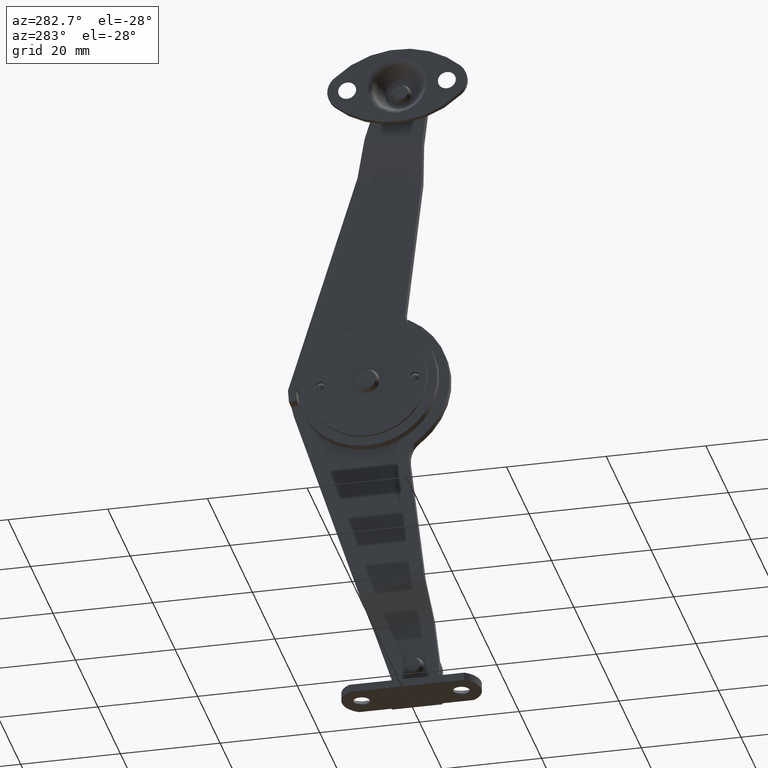
[diagram: clean part render]
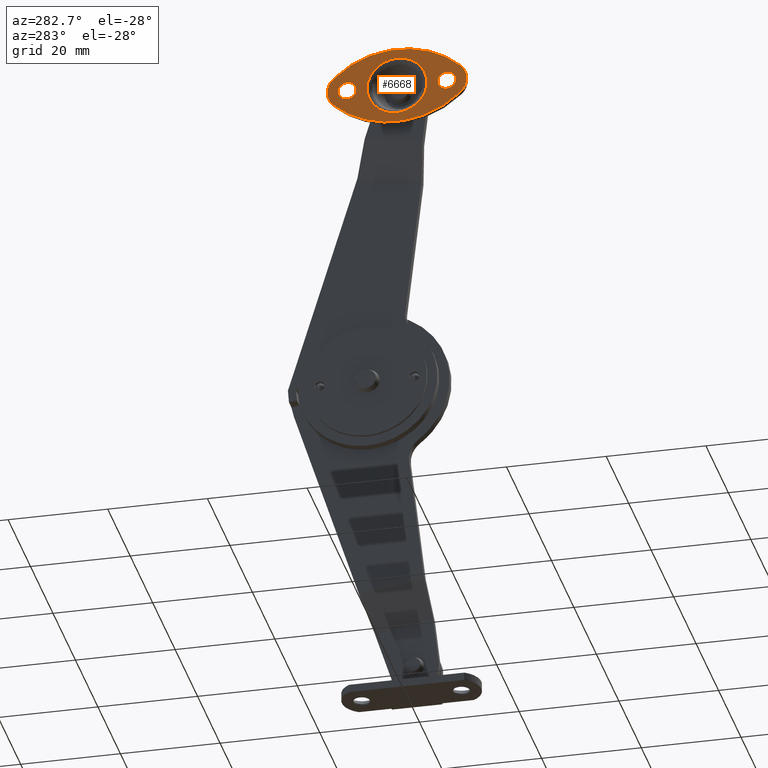
[diagram: same view with one face highlighted and labeled with its STEP entity id]
A machine part, auxiliary view. The second image highlights one B-rep face of the part: STEP entity #6668.
In plain terms, the highlighted face is a freeform B-spline surface patch.
Its self-contained STEP definition (entity closure, byte-faithful):
#4933=CARTESIAN_POINT('',(4.731361E-010,8.205548799091805,60.358773624055331));
#4934=VERTEX_POINT('',#4933);
#4940=CARTESIAN_POINT('',(-1.122190E-014,10.0,62.299999999999997));
#4941=VERTEX_POINT('',#4940);
#4942=CARTESIAN_POINT('',(4.731361E-010,8.205548799091805,60.358773624055331));
#4943=CARTESIAN_POINT('',(-1.122190E-014,8.200000000000001,60.429277803772081));
#4944=CARTESIAN_POINT('',(-1.122190E-014,8.200000000000001,60.500000000000000));
#4945=CARTESIAN_POINT('',(-1.122190E-014,8.200000000000001,62.300000000000011));
#4946=CARTESIAN_POINT('',(-1.122190E-014,10.0,62.299999999999997));
#4954=(BOUNDED_CURVE()B_SPLINE_CURVE(2,(#4942,#4943,#4944,#4945,#4946),.UNSPECIFIED.,.F.,.U.)B_SPLINE_CURVE_WITH_KNOTS((3,2,3),(0.736331299945442,0.750000000000000,1.0),.UNSPECIFIED.)CURVE()GEOMETRIC_REPRESENTATION_ITEM()RATIONAL_B_SPLINE_CURVE((0.969723354737421,0.983986121776100,1.0,0.707106781186547,1.0))REPRESENTATION_ITEM(''));
#4955=EDGE_CURVE('',#4934,#4941,#4954,.T.);
#4957=CARTESIAN_POINT('',(4.731358E-010,11.794451200908190,60.641226375944662));
#4958=VERTEX_POINT('',#4957);
#4959=CARTESIAN_POINT('',(-1.122190E-014,10.0,62.299999999999997));
#4960=CARTESIAN_POINT('',(-1.122190E-014,11.663902878292749,62.300000000000004));
#4961=CARTESIAN_POINT('',(4.731358E-010,11.794451200908194,60.641226375944655));
#4969=(BOUNDED_CURVE()B_SPLINE_CURVE(2,(#4959,#4960,#4961),.UNSPECIFIED.,.F.,.U.)B_SPLINE_CURVE_WITH_KNOTS((3,3),(0.0,0.236331299945443),.UNSPECIFIED.)CURVE()GEOMETRIC_REPRESENTATION_ITEM()RATIONAL_B_SPLINE_CURVE((1.0,0.723120659410447,0.969723354737423))REPRESENTATION_ITEM(''));
#4970=EDGE_CURVE('',#4941,#4958,#4969,.T.);
#5016=CARTESIAN_POINT('',(-1.122190E-014,10.0,58.700000000000003));
#5017=VERTEX_POINT('',#5016);
#5018=CARTESIAN_POINT('',(4.731358E-010,11.794451200908197,60.641226375944655));
#5019=CARTESIAN_POINT('',(-1.122190E-014,11.800000000000002,60.570722196227919));
#5020=CARTESIAN_POINT('',(-1.122190E-014,11.800000000000001,60.500000000000000));
#5021=CARTESIAN_POINT('',(-1.122190E-014,11.799999999999997,58.700000000000003));
#5022=CARTESIAN_POINT('',(-1.122190E-014,10.0,58.700000000000003));
#5030=(BOUNDED_CURVE()B_SPLINE_CURVE(2,(#5018,#5019,#5020,#5021,#5022),.UNSPECIFIED.,.F.,.U.)B_SPLINE_CURVE_WITH_KNOTS((3,2,3),(0.236331299945443,0.250000000000000,0.500000000000000),.UNSPECIFIED.)CURVE()GEOMETRIC_REPRESENTATION_ITEM()RATIONAL_B_SPLINE_CURVE((0.969723354737423,0.983986121776101,1.0,0.707106781186547,1.0))REPRESENTATION_ITEM(''));
#5031=EDGE_CURVE('',#4958,#5017,#5030,.T.);
#5033=CARTESIAN_POINT('',(-1.122190E-014,10.0,58.700000000000003));
#5034=CARTESIAN_POINT('',(-1.122190E-014,8.336097121707255,58.700000000000003));
#5035=CARTESIAN_POINT('',(4.731361E-010,8.205548799091805,60.358773624055331));
#5043=(BOUNDED_CURVE()B_SPLINE_CURVE(2,(#5033,#5034,#5035),.UNSPECIFIED.,.F.,.U.)B_SPLINE_CURVE_WITH_KNOTS((3,3),(0.500000000000000,0.736331299945443),.UNSPECIFIED.)CURVE()GEOMETRIC_REPRESENTATION_ITEM()RATIONAL_B_SPLINE_CURVE((1.0,0.723120659410447,0.969723354737422))REPRESENTATION_ITEM(''));
#5044=EDGE_CURVE('',#5017,#4934,#5043,.T.);
#5115=CARTESIAN_POINT('',(4.731369E-010,-11.794451200907970,60.358773624055331));
#5116=VERTEX_POINT('',#5115);
#5122=CARTESIAN_POINT('',(-1.122190E-014,-9.999999999999769,62.299999999999997));
#5123=VERTEX_POINT('',#5122);
#5124=CARTESIAN_POINT('',(4.731369E-010,-11.794451200907966,60.358773624055331));
#5125=CARTESIAN_POINT('',(-1.122190E-014,-11.799999999999768,60.429277803772081));
#5126=CARTESIAN_POINT('',(-1.122190E-014,-11.799999999999770,60.500000000000000));
#5127=CARTESIAN_POINT('',(-1.122190E-014,-11.799999999999770,62.300000000000011));
#5128=CARTESIAN_POINT('',(-1.122190E-014,-9.999999999999769,62.299999999999997));
#5136=(BOUNDED_CURVE()B_SPLINE_CURVE(2,(#5124,#5125,#5126,#5127,#5128),.UNSPECIFIED.,.F.,.U.)B_SPLINE_CURVE_WITH_KNOTS((3,2,3),(0.736331299945442,0.750000000000000,1.0),.UNSPECIFIED.)CURVE()GEOMETRIC_REPRESENTATION_ITEM()RATIONAL_B_SPLINE_CURVE((0.969723354737421,0.983986121776100,1.0,0.707106781186547,1.0))REPRESENTATION_ITEM(''));
#5137=EDGE_CURVE('',#5116,#5123,#5136,.T.);
#5139=CARTESIAN_POINT('',(4.731363E-010,-8.205548799091574,60.641226375944669));
#5140=VERTEX_POINT('',#5139);
#5141=CARTESIAN_POINT('',(-1.122190E-014,-9.999999999999769,62.299999999999997));
#5142=CARTESIAN_POINT('',(-1.122190E-014,-8.336097121707029,62.300000000000004));
#5143=CARTESIAN_POINT('',(4.731363E-010,-8.205548799091574,60.641226375944669));
#5151=(BOUNDED_CURVE()B_SPLINE_CURVE(2,(#5141,#5142,#5143),.UNSPECIFIED.,.F.,.U.)B_SPLINE_CURVE_WITH_KNOTS((3,3),(0.0,0.236331299945442),.UNSPECIFIED.)CURVE()GEOMETRIC_REPRESENTATION_ITEM()RATIONAL_B_SPLINE_CURVE((1.0,0.723120659410448,0.969723354737421))REPRESENTATION_ITEM(''));
#5152=EDGE_CURVE('',#5123,#5140,#5151,.T.);
#5198=CARTESIAN_POINT('',(-1.122190E-014,-9.999999999999769,58.700000000000003));
#5199=VERTEX_POINT('',#5198);
#5200=CARTESIAN_POINT('',(4.731363E-010,-8.205548799091574,60.641226375944669));
#5201=CARTESIAN_POINT('',(-1.122190E-014,-8.199999999999770,60.570722196227919));
#5202=CARTESIAN_POINT('',(-1.122190E-014,-8.199999999999770,60.500000000000000));
#5203=CARTESIAN_POINT('',(-1.122190E-014,-8.199999999999770,58.700000000000003));
#5204=CARTESIAN_POINT('',(-1.122190E-014,-9.999999999999769,58.700000000000003));
#5212=(BOUNDED_CURVE()B_SPLINE_CURVE(2,(#5200,#5201,#5202,#5203,#5204),.UNSPECIFIED.,.F.,.U.)B_SPLINE_CURVE_WITH_KNOTS((3,2,3),(0.236331299945442,0.250000000000000,0.500000000000000),.UNSPECIFIED.)CURVE()GEOMETRIC_REPRESENTATION_ITEM()RATIONAL_B_SPLINE_CURVE((0.969723354737421,0.983986121776100,1.0,0.707106781186547,1.0))REPRESENTATION_ITEM(''));
#5213=EDGE_CURVE('',#5140,#5199,#5212,.T.);
#5215=CARTESIAN_POINT('',(-1.122190E-014,-9.999999999999769,58.700000000000003));
#5216=CARTESIAN_POINT('',(-1.122190E-014,-11.663902878292516,58.700000000000003));
#5217=CARTESIAN_POINT('',(4.731369E-010,-11.794451200907968,60.358773624055331));
#5225=(BOUNDED_CURVE()B_SPLINE_CURVE(2,(#5215,#5216,#5217),.UNSPECIFIED.,.F.,.U.)B_SPLINE_CURVE_WITH_KNOTS((3,3),(0.500000000000000,0.736331299945443),.UNSPECIFIED.)CURVE()GEOMETRIC_REPRESENTATION_ITEM()RATIONAL_B_SPLINE_CURVE((1.0,0.723120659410447,0.969723354737422))REPRESENTATION_ITEM(''));
#5226=EDGE_CURVE('',#5199,#5116,#5225,.T.);
#5483=CARTESIAN_POINT('',(1.655306E-016,2.414731515768321,55.007361348844213));
#5484=VERTEX_POINT('',#5483);
#5498=CARTESIAN_POINT('',(0.0,0.0,54.499999362757407));
#5499=VERTEX_POINT('',#5498);
#5500=CARTESIAN_POINT('',(0.0,0.0,54.499999362757407));
#5501=CARTESIAN_POINT('',(0.0,1.260666959942640,54.499999362757407));
#5502=CARTESIAN_POINT('',(1.655306E-016,2.414731515768320,55.007361348844213));
#5510=(BOUNDED_CURVE()B_SPLINE_CURVE(2,(#5500,#5501,#5502),.UNSPECIFIED.,.F.,.U.)B_SPLINE_CURVE_WITH_KNOTS((3,3),(0.500000000000000,0.568337989563843),.UNSPECIFIED.)CURVE()GEOMETRIC_REPRESENTATION_ITEM()RATIONAL_B_SPLINE_CURVE((1.0,0.919937065077624,0.883644850244656))REPRESENTATION_ITEM(''));
#5511=EDGE_CURVE('',#5499,#5484,#5510,.T.);
#5513=CARTESIAN_POINT('',(0.0,0.0,66.500000637242593));
#5514=VERTEX_POINT('',#5513);
#5515=CARTESIAN_POINT('',(0.0,0.0,66.500000637242593));
#5516=CARTESIAN_POINT('',(0.0,-6.000000637242591,66.500000637242593));
#5517=CARTESIAN_POINT('',(0.0,-6.000000637242590,60.500000000000000));
#5518=CARTESIAN_POINT('',(0.0,-6.000000637242591,54.499999362757414));
#5519=CARTESIAN_POINT('',(0.0,0.0,54.499999362757407));
#5527=(BOUNDED_CURVE()B_SPLINE_CURVE(2,(#5515,#5516,#5517,#5518,#5519),.UNSPECIFIED.,.F.,.U.)B_SPLINE_CURVE_WITH_KNOTS((3,2,3),(0.0,0.250000000000000,0.500000000000000),.UNSPECIFIED.)CURVE()GEOMETRIC_REPRESENTATION_ITEM()RATIONAL_B_SPLINE_CURVE((1.0,0.707106781186547,1.0,0.707106781186547,1.0))REPRESENTATION_ITEM(''));
#5528=EDGE_CURVE('',#5514,#5499,#5527,.T.);
#5530=CARTESIAN_POINT('',(1.708202E-016,5.829791016672071,61.918994132872491));
#5531=VERTEX_POINT('',#5530);
#5532=CARTESIAN_POINT('',(1.708202E-016,5.829791016672071,61.918994132872491));
#5533=CARTESIAN_POINT('',(0.0,4.714755960700335,66.500000637242593));
#5534=CARTESIAN_POINT('',(0.0,0.0,66.500000637242593));
#5542=(BOUNDED_CURVE()B_SPLINE_CURVE(2,(#5532,#5533,#5534),.UNSPECIFIED.,.F.,.U.)B_SPLINE_CURVE_WITH_KNOTS((3,3),(0.790401677693715,1.0),.UNSPECIFIED.)CURVE()GEOMETRIC_REPRESENTATION_ITEM()RATIONAL_B_SPLINE_CURVE((0.920631806222915,0.754440290887250,1.0))REPRESENTATION_ITEM(''));
#5543=EDGE_CURVE('',#5531,#5514,#5542,.T.);
#5641=CARTESIAN_POINT('',(1.655306E-016,2.414731515768321,55.007361348844213));
#5642=CARTESIAN_POINT('',(0.0,6.000000637242589,56.583555030817145));
#5643=CARTESIAN_POINT('',(0.0,6.000000637242590,60.500000000000000));
#5644=CARTESIAN_POINT('',(0.0,6.000000637242591,61.219705464867644));
#5645=CARTESIAN_POINT('',(1.708202E-016,5.829791016672071,61.918994132872491));
#5653=(BOUNDED_CURVE()B_SPLINE_CURVE(2,(#5641,#5642,#5643,#5644,#5645),.UNSPECIFIED.,.F.,.U.)B_SPLINE_CURVE_WITH_KNOTS((3,2,3),(0.568337989563842,0.750000000000000,0.790401677693714),.UNSPECIFIED.)CURVE()GEOMETRIC_REPRESENTATION_ITEM()RATIONAL_B_SPLINE_CURVE((0.883644850244656,0.787169716108923,1.0,0.952666490299297,0.920631806222916))REPRESENTATION_ITEM(''));
#5654=EDGE_CURVE('',#5484,#5531,#5653,.T.);
#6423=CARTESIAN_POINT('',(0.0,12.758616721199980,57.603444496382103));
#6424=VERTEX_POINT('',#6423);
#6430=CARTESIAN_POINT('',(0.0,12.758617123849641,63.396555215380587));
#6431=VERTEX_POINT('',#6430);
#6432=CARTESIAN_POINT('',(0.0,12.758616721199980,57.603444496382103));
#6433=CARTESIAN_POINT('',(0.0,13.999998855877655,58.785710790368512));
#6434=CARTESIAN_POINT('',(0.0,13.999998975029129,60.499999351728952));
#6435=CARTESIAN_POINT('',(0.0,13.999999094180607,62.214287913089372));
#6436=CARTESIAN_POINT('',(0.0,12.758617123849641,63.396555215380587));
#6444=(BOUNDED_CURVE()B_SPLINE_CURVE(2,(#6432,#6433,#6434,#6435,#6436),.UNSPECIFIED.,.F.,.U.)B_SPLINE_CURVE_WITH_KNOTS((3,2,3),(0.0,0.500000000000000,1.0),.UNSPECIFIED.)CURVE()GEOMETRIC_REPRESENTATION_ITEM()RATIONAL_B_SPLINE_CURVE((1.0,0.919144843556742,1.0,0.919144843556742,1.0))REPRESENTATION_ITEM(''));
#6445=EDGE_CURVE('',#6424,#6431,#6444,.T.);
#6484=CARTESIAN_POINT('',(0.0,-12.758620084382461,57.603447699412207));
#6485=VERTEX_POINT('',#6484);
#6491=CARTESIAN_POINT('',(0.0,-12.758620084382461,57.603447699412207));
#6492=CARTESIAN_POINT('',(0.0,-0.000003206843158,45.452385105824156));
#6493=CARTESIAN_POINT('',(0.0,12.758616721199999,57.603444496382068));
#6501=(BOUNDED_CURVE()B_SPLINE_CURVE(2,(#6491,#6492,#6493),.UNSPECIFIED.,.F.,.U.)CURVE()GEOMETRIC_REPRESENTATION_ITEM()QUASI_UNIFORM_CURVE()RATIONAL_B_SPLINE_CURVE((1.0,0.724138048762327,1.0))REPRESENTATION_ITEM(''));
#6502=EDGE_CURVE('',#6485,#6424,#6501,.T.);
#6539=CARTESIAN_POINT('',(0.0,-12.758619224957959,63.396553119086697));
#6540=VERTEX_POINT('',#6539);
#6546=CARTESIAN_POINT('',(0.0,-12.758619224957970,63.396553119086718));
#6547=CARTESIAN_POINT('',(0.0,-13.999999745680187,62.214287153588835));
#6548=CARTESIAN_POINT('',(0.0,-13.999999999999730,60.500000593411940));
#6549=CARTESIAN_POINT('',(0.0,-14.000000254319261,58.785714033235045));
#6550=CARTESIAN_POINT('',(0.0,-12.758620084382461,57.603447699412207));
#6558=(BOUNDED_CURVE()B_SPLINE_CURVE(2,(#6546,#6547,#6548,#6549,#6550),.UNSPECIFIED.,.F.,.U.)B_SPLINE_CURVE_WITH_KNOTS((3,2,3),(0.0,0.500000000000000,1.0),.UNSPECIFIED.)CURVE()GEOMETRIC_REPRESENTATION_ITEM()RATIONAL_B_SPLINE_CURVE((1.0,0.919144959641192,1.0,0.919144959641192,1.0))REPRESENTATION_ITEM(''));
#6559=EDGE_CURVE('',#6540,#6485,#6558,.T.);
#6593=CARTESIAN_POINT('',(0.0,12.758617123849641,63.396555215380587));
#6594=CARTESIAN_POINT('',(0.0,-0.000002048788960,75.547614436182940));
#6595=CARTESIAN_POINT('',(0.0,-12.758619224957959,63.396553119086697));
#6603=(BOUNDED_CURVE()B_SPLINE_CURVE(2,(#6593,#6594,#6595),.UNSPECIFIED.,.F.,.U.)CURVE()GEOMETRIC_REPRESENTATION_ITEM()QUASI_UNIFORM_CURVE()RATIONAL_B_SPLINE_CURVE((1.0,0.724138061743976,1.0))REPRESENTATION_ITEM(''));
#6604=EDGE_CURVE('',#6431,#6540,#6603,.T.);
#6639=CARTESIAN_POINT('',(0.0,-15.398599894532980,69.299199984194416));
#6640=CARTESIAN_POINT('',(0.0,15.398599620580891,69.299199984194416));
#6641=CARTESIAN_POINT('',(0.0,-15.398599894532980,51.700799601134342));
#6642=CARTESIAN_POINT('',(0.0,15.398599620580891,51.700799601134342));
#6643=B_SPLINE_SURFACE_WITH_KNOTS('',1,1,((#6639,#6641),(#6640,#6642)),.UNSPECIFIED.,.F.,.F.,.U.,(2,2),(2,2),(0.0,30.797199515113871),(0.0,17.598400383060081),.UNSPECIFIED.);
#6644=ORIENTED_EDGE('',*,*,#6604,.F.);
#6645=ORIENTED_EDGE('',*,*,#6445,.F.);
#6646=ORIENTED_EDGE('',*,*,#6502,.F.);
#6647=ORIENTED_EDGE('',*,*,#6559,.F.);
#6648=EDGE_LOOP('',(#6644,#6645,#6646,#6647));
#6649=FACE_OUTER_BOUND('',#6648,.T.);
#6650=ORIENTED_EDGE('',*,*,#5528,.T.);
#6651=ORIENTED_EDGE('',*,*,#5511,.T.);
#6652=ORIENTED_EDGE('',*,*,#5654,.T.);
#6653=ORIENTED_EDGE('',*,*,#5543,.T.);
#6654=EDGE_LOOP('',(#6650,#6651,#6652,#6653));
#6655=FACE_BOUND('',#6654,.T.);
#6656=ORIENTED_EDGE('',*,*,#5226,.F.);
#6657=ORIENTED_EDGE('',*,*,#5213,.F.);
#6658=ORIENTED_EDGE('',*,*,#5152,.F.);
#6659=ORIENTED_EDGE('',*,*,#5137,.F.);
#6660=EDGE_LOOP('',(#6656,#6657,#6658,#6659));
#6661=FACE_BOUND('',#6660,.T.);
#6662=ORIENTED_EDGE('',*,*,#5044,.F.);
#6663=ORIENTED_EDGE('',*,*,#5031,.F.);
#6664=ORIENTED_EDGE('',*,*,#4970,.F.);
#6665=ORIENTED_EDGE('',*,*,#4955,.F.);
#6666=EDGE_LOOP('',(#6662,#6663,#6664,#6665));
#6667=FACE_BOUND('',#6666,.T.);
#6668=ADVANCED_FACE('',(#6649,#6655,#6661,#6667),#6643,.T.);